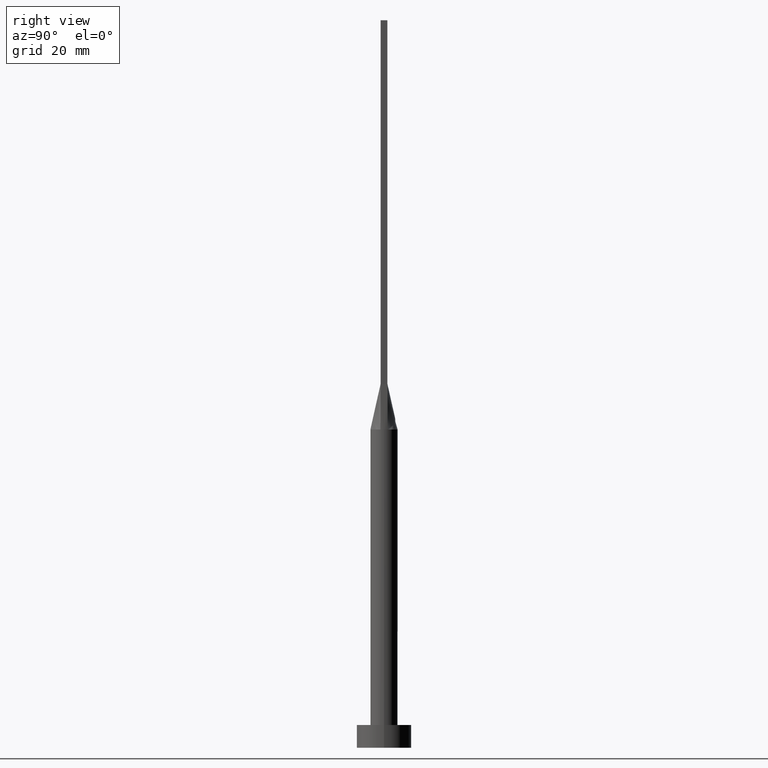
[diagram: clean part render]
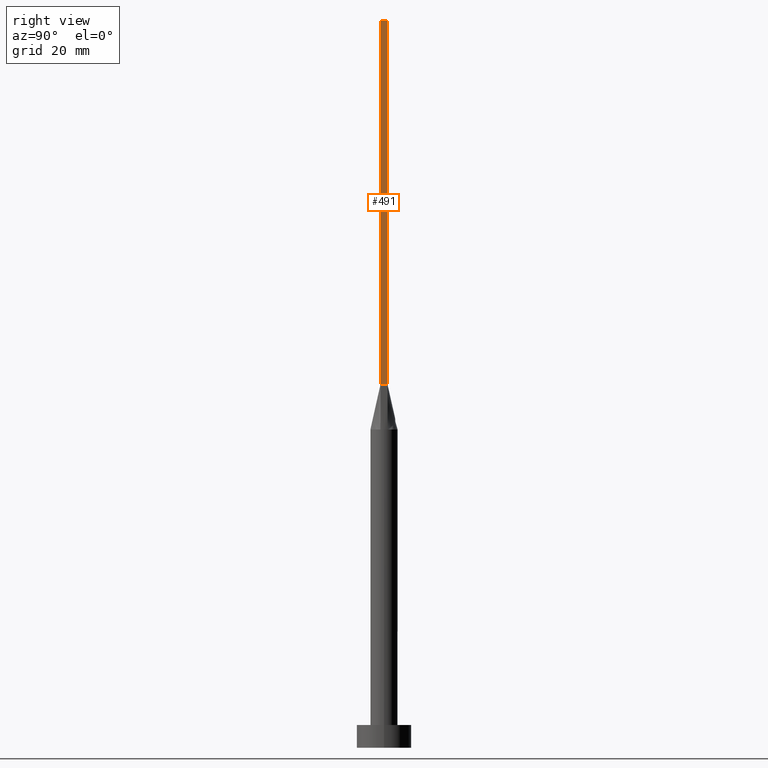
[diagram: same view with one face highlighted and labeled with its STEP entity id]
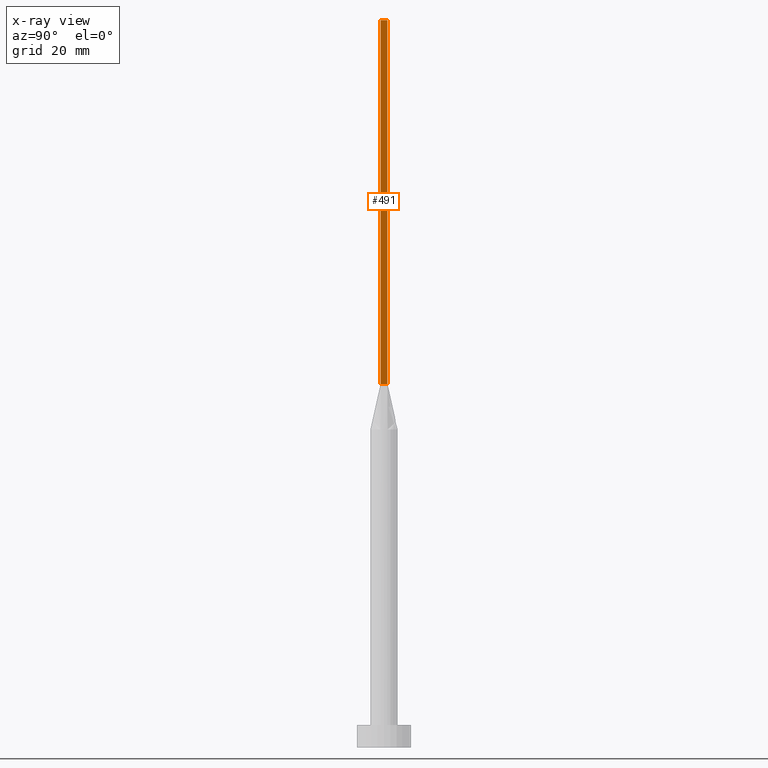
[diagram: x-ray of the same camera — body ghosted, the highlighted face saturated]
A machine part, right view. The second image highlights one B-rep face of the part: STEP entity #491.
The next image is the same camera in x-ray: the body ghosted, the highlighted face saturated — about 0% of this face is hidden behind the body in this view.
In plain terms, the highlighted planar face has unit normal (-1, 0, 0).
Its self-contained STEP definition (entity closure, byte-faithful):
#11 = EDGE_CURVE ( 'NONE', #215, #514, #333, .T. ) ;
#14 = CARTESIAN_POINT ( 'NONE',  ( 2.750000000000000000, -0.7499999999999997780, 80.00000000000000000 ) ) ;
#22 = DIRECTION ( 'NONE',  ( -0.000000000000000000, -0.000000000000000000, -1.000000000000000000 ) ) ;
#62 = PLANE ( 'NONE',  #163 ) ;
#87 = EDGE_CURVE ( 'NONE', #514, #255, #130, .T. ) ;
#89 = CARTESIAN_POINT ( 'NONE',  ( 2.750000000000000000, -0.7499999999999997780, 160.0000000000000000 ) ) ;
#94 = ORIENTED_EDGE ( 'NONE', *, *, #552, .F. ) ;
#114 = ORIENTED_EDGE ( 'NONE', *, *, #188, .F. ) ;
#130 = LINE ( 'NONE', #236, #224 ) ;
#163 = AXIS2_PLACEMENT_3D ( 'NONE', #418, #422, #366 ) ;
#188 = EDGE_CURVE ( 'NONE', #215, #314, #542, .T. ) ;
#215 = VERTEX_POINT ( 'NONE', #271 ) ;
#219 = DIRECTION ( 'NONE',  ( 0.000000000000000000, 1.000000000000000000, 0.000000000000000000 ) ) ;
#224 = VECTOR ( 'NONE', #576, 1000.000000000000000 ) ;
#230 = VECTOR ( 'NONE', #22, 1000.000000000000000 ) ;
#236 = CARTESIAN_POINT ( 'NONE',  ( 2.750000000000000000, 0.7500000000000002220, 80.00000000000000000 ) ) ;
#255 = VERTEX_POINT ( 'NONE', #381 ) ;
#263 = ORIENTED_EDGE ( 'NONE', *, *, #87, .T. ) ;
#268 = EDGE_LOOP ( 'NONE', ( #263, #94, #114, #343 ) ) ;
#271 = CARTESIAN_POINT ( 'NONE',  ( 2.750000000000000000, -0.7499999999999997780, 160.0000000000000000 ) ) ;
#276 = CARTESIAN_POINT ( 'NONE',  ( 2.750000000000000000, -0.7499999999999997780, 160.0000000000000000 ) ) ;
#282 = DIRECTION ( 'NONE',  ( -0.000000000000000000, -0.000000000000000000, -1.000000000000000000 ) ) ;
#314 = VERTEX_POINT ( 'NONE', #420 ) ;
#333 = LINE ( 'NONE', #89, #353 ) ;
#343 = ORIENTED_EDGE ( 'NONE', *, *, #11, .T. ) ;
#347 = CARTESIAN_POINT ( 'NONE',  ( 2.750000000000000000, 0.7500000000000002220, 160.0000000000000000 ) ) ;
#353 = VECTOR ( 'NONE', #282, 1000.000000000000000 ) ;
#366 = DIRECTION ( 'NONE',  ( 0.000000000000000000, 0.000000000000000000, 1.000000000000000000 ) ) ;
#381 = CARTESIAN_POINT ( 'NONE',  ( 2.750000000000000000, 0.7500000000000002220, 80.00000000000000000 ) ) ;
#418 = CARTESIAN_POINT ( 'NONE',  ( 2.750000000000000000, -0.7499999999999997780, 160.0000000000000000 ) ) ;
#420 = CARTESIAN_POINT ( 'NONE',  ( 2.750000000000000000, 0.7500000000000002220, 160.0000000000000000 ) ) ;
#422 = DIRECTION ( 'NONE',  ( -1.000000000000000000, 0.000000000000000000, 0.000000000000000000 ) ) ;
#429 = LINE ( 'NONE', #347, #230 ) ;
#456 = FACE_OUTER_BOUND ( 'NONE', #268, .T. ) ;
#479 = VECTOR ( 'NONE', #219, 1000.000000000000000 ) ;
#491 = ADVANCED_FACE ( 'NONE', ( #456 ), #62, .F. ) ;
#514 = VERTEX_POINT ( 'NONE', #14 ) ;
#542 = LINE ( 'NONE', #276, #479 ) ;
#552 = EDGE_CURVE ( 'NONE', #314, #255, #429, .T. ) ;
#576 = DIRECTION ( 'NONE',  ( -0.000000000000000000, 1.000000000000000000, -0.000000000000000000 ) ) ;